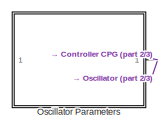
[diagram: root canvas - part 1/3, top left region]
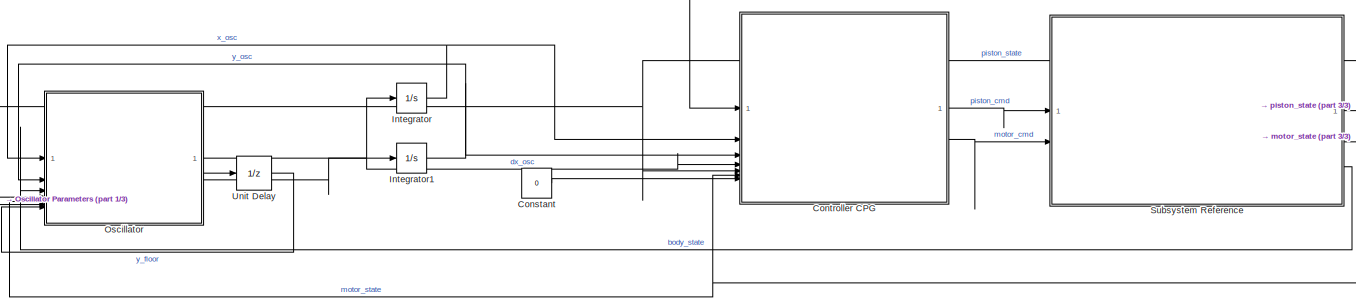
[diagram: root canvas - part 2/3, bottom center region]
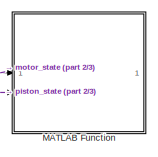
[diagram: root canvas - part 3/3, bottom right region]
MODEL slx_09a37975ffab
KIND model
CONFIG AbsTol = 1e-5
CONFIG EnableMultiTasking = off
CONFIG FixedStep = auto
CONFIG InitFcn = parameters;\ninitBusObjects;\nloadCPGParam;
CONFIG MaxStep = 1e-3
CONFIG MinStep = auto
CONFIG RelTol = 1e-5
CONFIG SampleTimeConstraint = Unconstrained
CONFIG SolverName = ode113
CONFIG StartTime = 0.0
CONFIG StopTime = Sim.time
BLOCK [Constant] Constant
  Value = 0
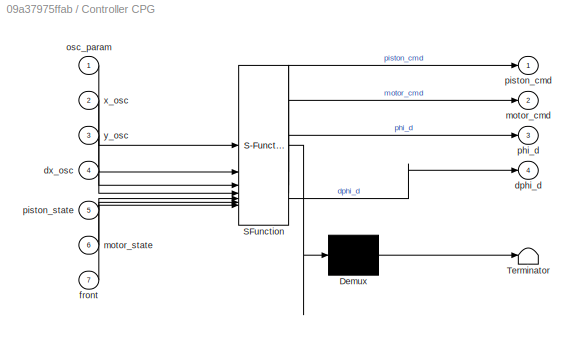
BLOCK [SubSystem] Controller CPG
  ErrorFcn = Stateflow.Translate.translate
  PermitHierarchicalResolution = ExplicitOnly
  SFBlockType = MATLAB Function
  TreatAsAtomicUnit = on
BLOCK [Demux] Controller CPG/ Demux 
  Outputs = 1
BLOCK [S-Function] Controller CPG/ SFunction 
  EnableBusSupport = on
  FunctionName = sf_sfun
  PortCounts = [7 5]
  SFcnIsStateOwnerBlock = off
  SFunctionDeploymentMode = off
  Tag = Stateflow S-Function 3
BLOCK [Terminator] Controller CPG/ Terminator 
BLOCK [Outport] Controller CPG/dphi_d
  Port = 4
BLOCK [Inport] Controller CPG/dx_osc
  Port = 4
BLOCK [Inport] Controller CPG/front
  Port = 7
BLOCK [Outport] Controller CPG/motor_cmd
  Port = 2
BLOCK [Inport] Controller CPG/motor_state
  Port = 6
BLOCK [Inport] Controller CPG/osc_param
BLOCK [Outport] Controller CPG/phi_d
  Port = 3
BLOCK [Outport] Controller CPG/piston_cmd
BLOCK [Inport] Controller CPG/piston_state
  Port = 5
BLOCK [Inport] Controller CPG/x_osc
  Port = 2
BLOCK [Inport] Controller CPG/y_osc
  Port = 3
BLOCK [Integrator] Integrator
  InitialCondition = out.tstInit.CPG(1)
BLOCK [Integrator] Integrator1
  InitialCondition = out.tstInit.CPG(2)
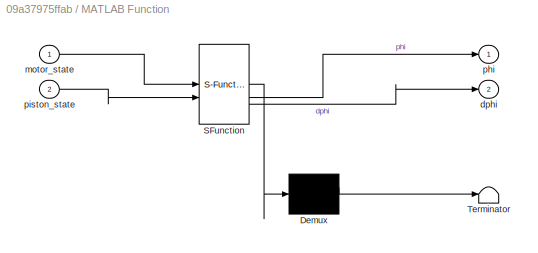
BLOCK [SubSystem] MATLAB Function
  ErrorFcn = Stateflow.Translate.translate
  PermitHierarchicalResolution = ExplicitOnly
  SFBlockType = MATLAB Function
  TreatAsAtomicUnit = on
BLOCK [Demux] MATLAB Function/ Demux 
  Outputs = 1
BLOCK [S-Function] MATLAB Function/ SFunction 
  EnableBusSupport = on
  FunctionName = sf_sfun
  PortCounts = [2 3]
  SFcnIsStateOwnerBlock = off
  SFunctionDeploymentMode = off
  Tag = Stateflow S-Function 7
BLOCK [Terminator] MATLAB Function/ Terminator 
BLOCK [Outport] MATLAB Function/dphi
  Port = 2
BLOCK [Inport] MATLAB Function/motor_state
BLOCK [Outport] MATLAB Function/phi
BLOCK [Inport] MATLAB Function/piston_state
  Port = 2
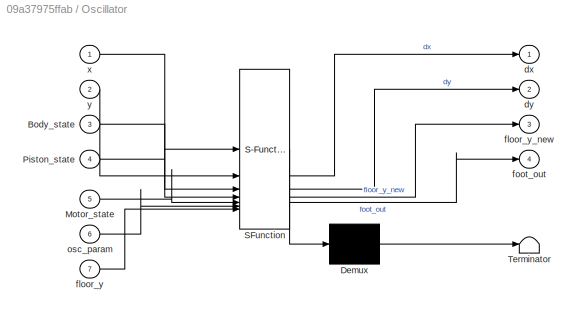
BLOCK [SubSystem] Oscillator
  ErrorFcn = Stateflow.Translate.translate
  PermitHierarchicalResolution = ExplicitOnly
  SFBlockType = MATLAB Function
  TreatAsAtomicUnit = on
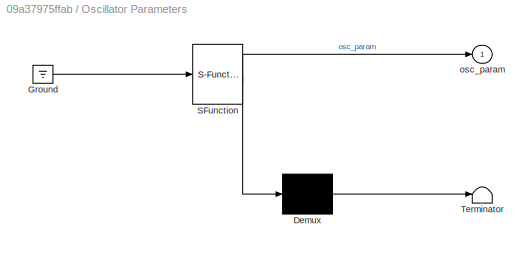
BLOCK [SubSystem] Oscillator Parameters
  ErrorFcn = Stateflow.Translate.translate
  PermitHierarchicalResolution = ExplicitOnly
  SFBlockType = MATLAB Function
  TreatAsAtomicUnit = on
BLOCK [Demux] Oscillator Parameters/ Demux 
  Outputs = 1
BLOCK [Ground] Oscillator Parameters/ Ground 
BLOCK [S-Function] Oscillator Parameters/ SFunction 
  EnableBusSupport = on
  FunctionName = sf_sfun
  Parameters = CPG
  PortCounts = [1 2]
  SFcnIsStateOwnerBlock = off
  SFunctionDeploymentMode = off
  Tag = Stateflow S-Function 6
BLOCK [Terminator] Oscillator Parameters/ Terminator 
BLOCK [Outport] Oscillator Parameters/osc_param
BLOCK [Demux] Oscillator/ Demux 
  Outputs = 1
BLOCK [S-Function] Oscillator/ SFunction 
  EnableBusSupport = on
  FunctionName = sf_sfun
  PortCounts = [7 5]
  SFcnIsStateOwnerBlock = off
  SFunctionDeploymentMode = off
  Tag = Stateflow S-Function 4
BLOCK [Terminator] Oscillator/ Terminator 
BLOCK [Inport] Oscillator/Body_state
  Port = 3
BLOCK [Inport] Oscillator/Motor_state
  Port = 5
BLOCK [Inport] Oscillator/Piston_state
  Port = 4
BLOCK [Outport] Oscillator/dx
BLOCK [Outport] Oscillator/dy
  Port = 2
BLOCK [Inport] Oscillator/floor_y
  Port = 7
BLOCK [Outport] Oscillator/floor_y_new
  Port = 3
BLOCK [Outport] Oscillator/foot_out
  Port = 4
BLOCK [Inport] Oscillator/osc_param
  Port = 6
BLOCK [Inport] Oscillator/x
BLOCK [Inport] Oscillator/y
  Port = 2
BLOCK [SubSystem] Subsystem Reference
  ReferencedSubsystem = SLemba_model
BLOCK [UnitDelay] Unit Delay
  HasFrameUpgradeWarning = on
  SampleTime = -1
LINE Constant:1 -> Controller CPG:7
LINE Controller CPG:1 -> Subsystem Reference:1
LINE Controller CPG:2 -> Subsystem Reference:2
NET Integrator1:1 -> Controller CPG:3, Oscillator:2
NET Integrator:1 -> Controller CPG:2, Oscillator:1
NET Oscillator Parameters:1 -> Controller CPG:1, Oscillator:6
NET Oscillator:1 -> Controller CPG:4, Integrator:1
LINE Oscillator:2 -> Integrator1:1
LINE Oscillator:3 -> Unit Delay:1
NET Subsystem Reference:1 -> Controller CPG:5, MATLAB Function:2, Oscillator:4
NET Subsystem Reference:2 -> Controller CPG:6, MATLAB Function:1, Oscillator:5
LINE Subsystem Reference:4 -> Oscillator:3
LINE Unit Delay:1 -> Oscillator:7
note: NET lines group one-source signal fan-out (src -> all destinations, sorted); 1:1 wires keep LINE
CHART Controller CPG states=1 transitions=1
  STATE_LABEL 'eML_blk_kernel()'
  STATE_LABEL 'SCRIPT:\nfunction [piston_cmd,motor_cmd,phi_d,dphi_d] = Controller(osc_param, x_osc,y_osc,dx_osc, piston_state,motor_state,front)\n\nkx = osc_param(3);\n\nl = piston_state.p;\ndl = piston_state.v;\nth = motor_state.q;\n\nif (front)\n    direction = -1;\nelse\n    direction = 1;\nend\n\n% set command\nphi_d = direction*x_osc*kx + pi/2;\ndphi_d = direction*dx_osc*kx;\nif (y_osc>0) \n    if(x_osc>0)\n        ue = 0; ur ...<+388ch>'
CHART Oscillator states=1 transitions=1
  STATE_LABEL 'eML_blk_kernel()'
  STATE_LABEL 'SCRIPT:\nfunction [dx,dy,floor_y_new,foot_out] = CPG(x,y,Body_state,Piston_state, Motor_state, osc_param,floor_y)%,dy_lift, fit)%dq_osc = CPG(input_osc)%\n% x = input_osc.x_osc; y = input_osc.y_osc; osc_param = input_osc.osc_param;\n% Body_state = input_osc.Body_state; Piston_state = input_osc.Piston_state; Motor_state = input_osc.Motor_state;\n\nx_body = Body_state.x; y_body = Body_state.y;\ndx_body = ...<+2141ch>'
CHART Oscillator Parameters states=1 transitions=1
  STATE_LABEL 'eML_blk_kernel()'
  STATE_LABEL 'SCRIPT:\nfunction osc_param = osc_paramCalc(CPG)\n\n% persistent osc_paramVal\n% \n% if isempty(osc_paramVal)\n%     out = load("PSO_runs/sol.mat");\n%     out = out.out;\n%     tst = out.simParams.tst;\n%     kx = out.simParams.kx;\n% \n%     tsw = out.out.BestSol.Position(4);\n% \n%     osc_paramVal = [tst,tsw,kx];\n% end\n\ntst = CPG.tst;\nkx = CPG.kx;\ntsw = CPG.tsw;\n\nosc_param = [tst,tsw,kx];\n'
CHART MATLAB Function states=1 transitions=1
  STATE_LABEL 'eML_blk_kernel()'
  STATE_LABEL 'SCRIPT:\nfunction [phi,dphi] = fcn(motor_state,piston_state)\n\nphi = phi_calc(motor_state.q,piston_state.p);\ndphi = dphi_calc(motor_state.q,piston_state.p,motor_state.w,piston_state.v);\n'
CHART  states=0 transitions=0
CHART  states=0 transitions=0
CHART  states=0 transitions=0
CHART  states=0 transitions=0
